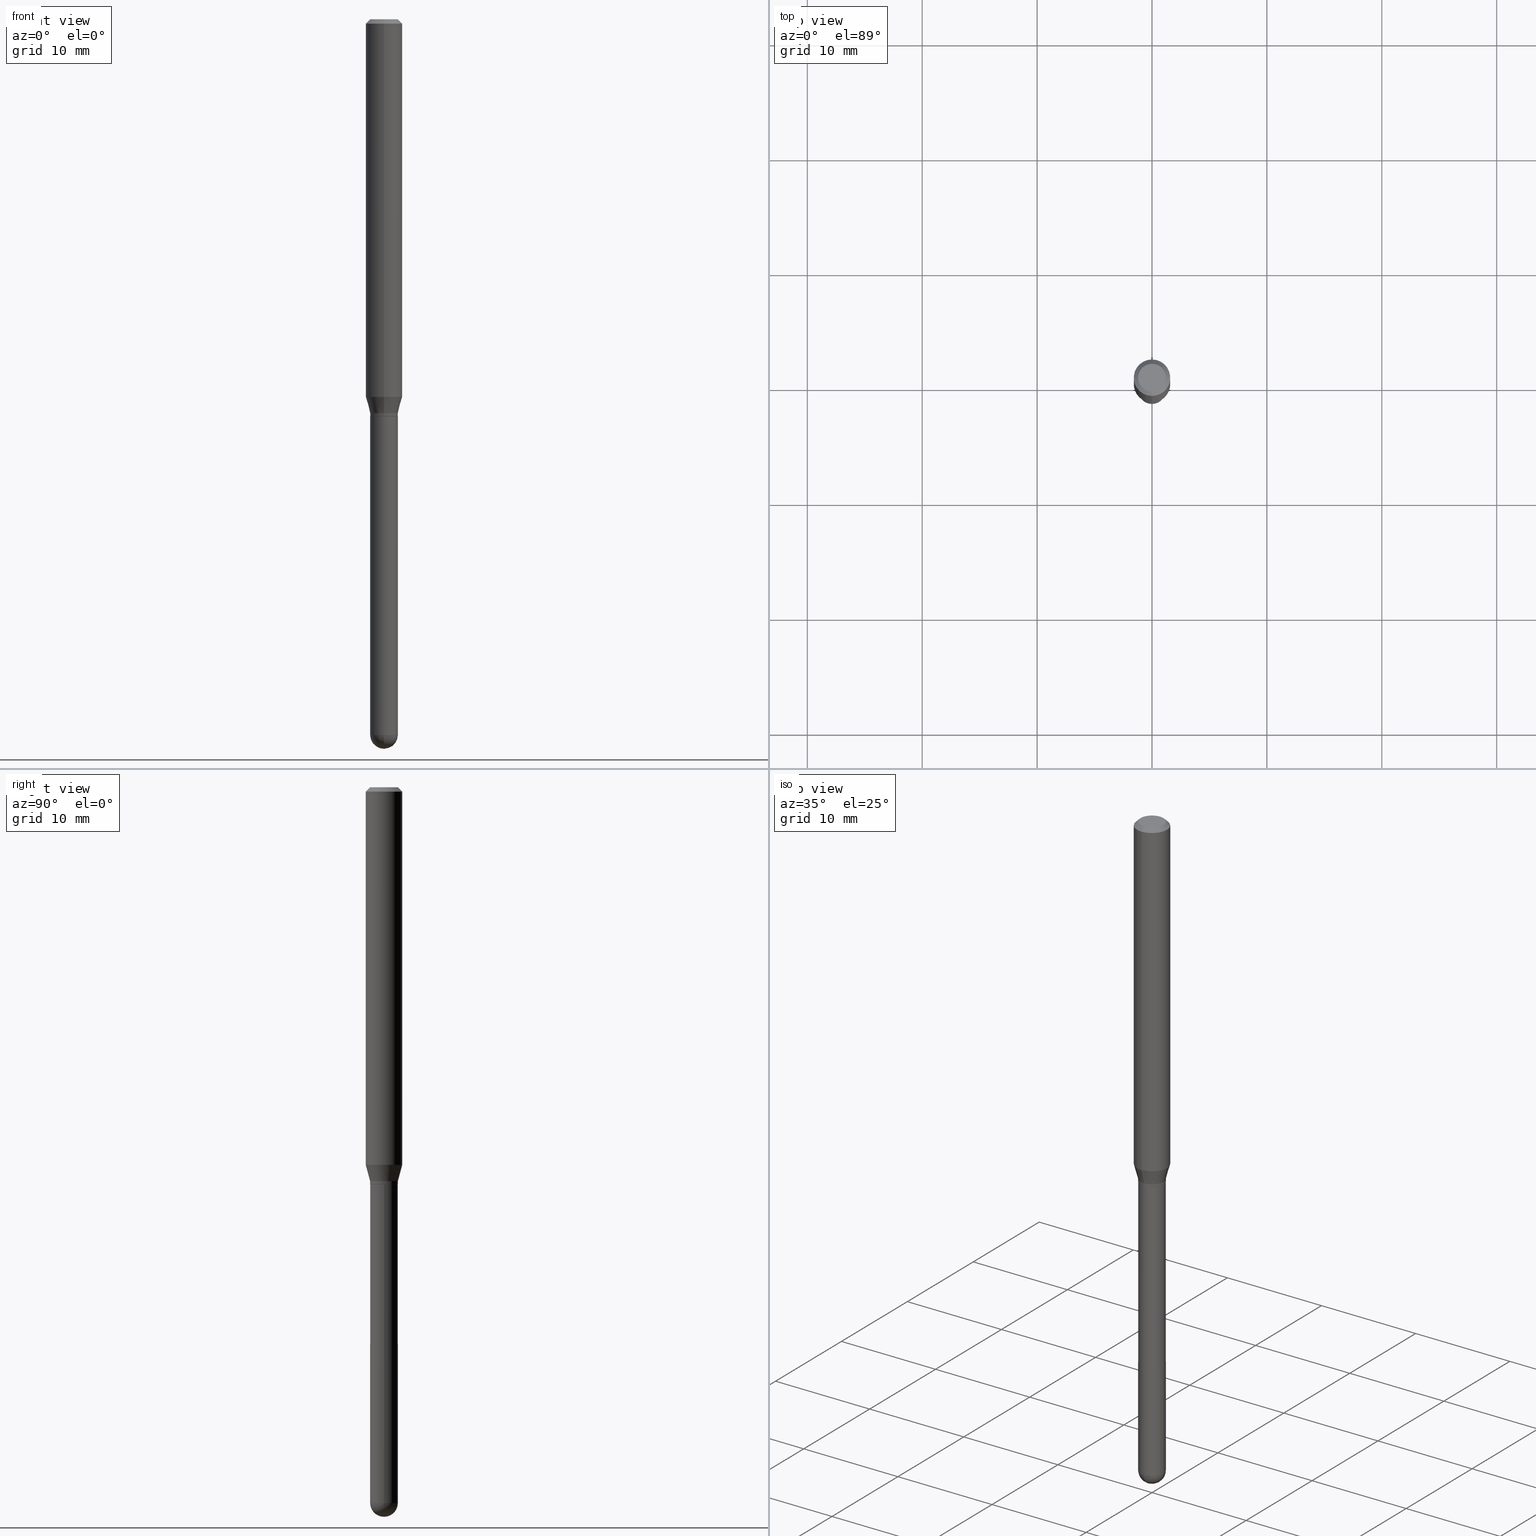
[diagram: canonical four-view strip — front | top / right | iso, engineering-drawing reading convention]
A machine part, canonical four-view strip (front | top / right | iso — engineering-drawing reading convention). The complete STEP part file that produces these views, byte-faithful:
ISO-10303-21;
HEADER;
FILE_DESCRIPTION (( 'STEP AP203' ),
    '1' );
FILE_NAME ('01577.STEP',
    '2024-03-07T19:41:30',
    ( '' ),
    ( '' ),
    'SwSTEP 2.0',
    'SolidWorks 2023',
    '' );
FILE_SCHEMA (( 'CONFIG_CONTROL_DESIGN' ));
ENDSEC;

DATA;
#1 = AXIS2_PLACEMENT_3D ( 'NONE', #165, #325, #30 ) ;
#2 = EDGE_CURVE ( 'NONE', #18, #146, #27, .T. ) ;
#3 = VERTEX_POINT ( 'NONE', #150 ) ;
#4 = FACE_OUTER_BOUND ( 'NONE', #511, .T. ) ;
#5 = DIRECTION ( 'NONE',  ( 1.000000000000000000, -6.982962677686280910E-15, 0.000000000000000000 ) ) ;
#6 = DIRECTION ( 'NONE',  ( -2.445498603033242318E-29, 3.491438668060727098E-15, 1.000000000000000000 ) ) ;
#7 = ORIENTED_EDGE ( 'NONE', *, *, #103, .T. ) ;
#8 = COORDINATED_UNIVERSAL_TIME_OFFSET ( 5, 0, .BEHIND. ) ;
#9 = EDGE_CURVE ( 'NONE', #300, #450, #330, .T. ) ;
#10 = CIRCLE ( 'NONE', #298, 0.04750000000000020178 ) ;
#11 = MANIFOLD_SOLID_BREP ( 'Body-Move/Copy2[1]', #136 ) ;
#12 = CALENDAR_DATE ( 2024, 7, 3 ) ;
#13 = CARTESIAN_POINT ( 'NONE',  ( 4.364351673553919652E-16, 0.06249999999999995143, -0.01500000000000022669 ) ) ;
#14 = ORIENTED_EDGE ( 'NONE', *, *, #158, .T. ) ;
#15 = ORIENTED_EDGE ( 'NONE', *, *, #317, .F. ) ;
#16 = CIRCLE ( 'NONE', #376, 0.04749999999999964667 ) ;
#17 = MANIFOLD_SOLID_BREP ( 'Body-Move/Copy2[2]', #269 ) ;
#18 = VERTEX_POINT ( 'NONE', #79 ) ;
#19 = CARTESIAN_POINT ( 'NONE',  ( 3.325878100125211547E-29, -4.748356588562590841E-15, -1.360000000000000542 ) ) ;
#20 = EDGE_LOOP ( 'NONE', ( #183, #377, #339, #374, #167 ) ) ;
#21 = ORIENTED_EDGE ( 'NONE', *, *, #32, .T. ) ;
#22 = DIRECTION ( 'NONE',  ( 6.982962677686265922E-15, 1.000000000000000000, -3.483106191921935554E-15 ) ) ;
#23 = EDGE_CURVE ( 'NONE', #139, #3, #210, .T. ) ;
#24 = VECTOR ( 'NONE', #38, 39.37007874015748143 ) ;
#25 = CC_DESIGN_APPROVAL ( #89, ( #111 ) ) ;
#26 = CARTESIAN_POINT ( 'NONE',  ( -3.281992458512212238E-16, -0.04700000000000473938, -1.360000000000000320 ) ) ;
#27 = LINE ( 'NONE', #272, #331 ) ;
#28 = APPLICATION_CONTEXT ( 'configuration controlled 3d designs of mechanical parts and assemblies' ) ;
#29 = CARTESIAN_POINT ( 'NONE',  ( 3.164522238549493662E-29, -4.517988804371280319E-15, -1.294019237886466112 ) ) ;
#30 = DIRECTION ( 'NONE',  ( -6.982962677686265922E-15, -1.000000000000000000, 3.483106191921935554E-15 ) ) ;
#31 = LINE ( 'NONE', #493, #51 ) ;
#32 = EDGE_CURVE ( 'NONE', #284, #321, #488, .T. ) ;
#33 = AXIS2_PLACEMENT_3D ( 'NONE', #206, #510, #160 ) ;
#34 = CARTESIAN_POINT ( 'NONE',  ( 5.993450207295445537E-29, -8.568675055808764986E-15, -2.452500000000000124 ) ) ;
#35 = AXIS2_PLACEMENT_3D ( 'NONE', #170, #327, #50 ) ;
#36 = DIRECTION ( 'NONE',  ( -6.982962677686265922E-15, -1.000000000000000000, 3.491438668060727098E-15 ) ) ;
#37 = PLANE ( 'NONE',  #467 ) ;
#38 = DIRECTION ( 'NONE',  ( -2.445498603033242318E-29, 3.491438668060727098E-15, 1.000000000000000000 ) ) ;
#39 = ORIENTED_EDGE ( 'NONE', *, *, #213, .F. ) ;
#40 = EDGE_CURVE ( 'NONE', #450, #351, #45, .T. ) ;
#41 = ORIENTED_EDGE ( 'NONE', *, *, #103, .F. ) ;
#42 = APPROVAL ( #367, 'UNSPECIFIED' ) ;
#43 = CARTESIAN_POINT ( 'NONE',  ( 2.167285587284378827E-46, -3.094233909923244903E-32, -8.862346453995985347E-18 ) ) ;
#44 = CARTESIAN_POINT ( 'NONE',  ( 3.324655350823693400E-29, -4.746610869228559386E-15, -1.359500000000000375 ) ) ;
#45 = CIRCLE ( 'NONE', #456, 0.04750000000000000749 ) ;
#46 = ORIENTED_EDGE ( 'NONE', *, *, #266, .T. ) ;
#47 = AXIS2_PLACEMENT_3D ( 'NONE', #143, #229, #22 ) ;
#48 = CYLINDRICAL_SURFACE ( 'NONE', #315, 0.06250000000000000000 ) ;
#49 = ADVANCED_FACE ( 'NONE', ( #398 ), #171, .T. ) ;
#50 = DIRECTION ( 'NONE',  ( 1.000000000000000000, 0.000000000000000000, 0.000000000000000000 ) ) ;
#51 = VECTOR ( 'NONE', #200, 39.37007874015748143 ) ;
#52 = EDGE_LOOP ( 'NONE', ( #491, #75 ) ) ;
#53 = PERSON_AND_ORGANIZATION ( #296, #102 ) ;
#54 = PRODUCT_DEFINITION_SHAPE ( 'NONE', 'NONE',  #340 ) ;
#55 = ORIENTED_EDGE ( 'NONE', *, *, #188, .F. ) ;
#56 = APPROVAL_ROLE ( '' ) ;
#57 = CARTESIAN_POINT ( 'NONE',  ( 5.993450207295445537E-29, -8.568675055808764986E-15, -2.452500000000000124 ) ) ;
#58 =( GEOMETRIC_REPRESENTATION_CONTEXT ( 3 ) GLOBAL_UNCERTAINTY_ASSIGNED_CONTEXT ( ( #382 ) ) GLOBAL_UNIT_ASSIGNED_CONTEXT ( ( #318, #471, #429 ) ) REPRESENTATION_CONTEXT ( 'NONE', 'WORKASPACE' ) );
#59 = FACE_OUTER_BOUND ( 'NONE', #208, .T. ) ;
#60 = ORIENTED_EDGE ( 'NONE', *, *, #135, .F. ) ;
#61 = EDGE_CURVE ( 'NONE', #162, #193, #401, .T. ) ;
#62 = DIRECTION ( 'NONE',  ( 1.000000000000000000, -6.982962677686280910E-15, 0.000000000000000000 ) ) ;
#63 = CARTESIAN_POINT ( 'NONE',  ( 3.316907271901575630E-16, 0.04749999999999143102, -2.452500000000000568 ) ) ;
#64 = CARTESIAN_POINT ( 'NONE',  ( 6.111640995526040935E-29, -8.731611883255839934E-15, -2.500000000000000000 ) ) ;
#65 = CARTESIAN_POINT ( 'NONE',  ( 5.997512247169047773E-29, -8.562857983512815004E-15, -2.452500000000000124 ) ) ;
#66 = CIRCLE ( 'NONE', #342, 0.04750000000000000749 ) ;
#67 = DIRECTION ( 'NONE',  ( -2.445498603033242318E-29, 3.491438668060727098E-15, 1.000000000000000000 ) ) ;
#68 = CARTESIAN_POINT ( 'NONE',  ( 3.907985046680881378E-16, 0.04749999999999549027, -1.350000000000000311 ) ) ;
#69 = CARTESIAN_POINT ( 'NONE',  ( 0.000000000000000000, 0.000000000000000000, 0.000000000000000000 ) ) ;
#70 = EDGE_CURVE ( 'NONE', #450, #139, #380, .T. ) ;
#71 = CARTESIAN_POINT ( 'NONE',  ( 0.000000000000000000, 0.000000000000000000, 0.000000000000000000 ) ) ;
#72 = CIRCLE ( 'NONE', #383, 0.06250000000000000000 ) ;
#73 = CARTESIAN_POINT ( 'NONE',  ( 3.375077994860819570E-16, 0.04749999999999549027, -1.350000000000000311 ) ) ;
#74 = DIRECTION ( 'NONE',  ( 2.445498603033241757E-29, -3.491438668060727098E-15, -1.000000000000000000 ) ) ;
#75 = ORIENTED_EDGE ( 'NONE', *, *, #454, .T. ) ;
#76 = EDGE_CURVE ( 'NONE', #484, #264, #485, .T. ) ;
#77 = CARTESIAN_POINT ( 'NONE',  ( 0.000000000000000000, 0.000000000000000000, 0.000000000000000000 ) ) ;
#78 = DIRECTION ( 'NONE',  ( -2.445468806185136597E-29, 3.491481338843145583E-15, 1.000000000000000000 ) ) ;
#79 = CARTESIAN_POINT ( 'NONE',  ( -3.316907271900660552E-16, -0.04750000000000491329, -1.349999999999999867 ) ) ;
#80 = DIRECTION ( 'NONE',  ( -2.445498603033242318E-29, 3.491438668060727098E-15, 1.000000000000000000 ) ) ;
#81 = CARTESIAN_POINT ( 'NONE',  ( -3.316907271900970672E-16, -0.04749999999999991729, 1.658433367328842571E-16 ) ) ;
#82 = DIRECTION ( 'NONE',  ( 6.982962677686265133E-15, 1.000000000000000000, 0.000000000000000000 ) ) ;
#83 = CARTESIAN_POINT ( 'NONE',  ( 3.325837576411786624E-29, -4.748414620826679034E-15, -1.360000000000000320 ) ) ;
#84 = CARTESIAN_POINT ( 'NONE',  ( 0.04749999999999999362, -5.080105348016776545E-15, -1.360000000000000320 ) ) ;
#85 = DIRECTION ( 'NONE',  ( 1.000000000000000000, -6.982962677686266711E-15, 4.876176775795934672E-29 ) ) ;
#86 = AXIS2_PLACEMENT_3D ( 'NONE', #71, #433, #239 ) ;
#87 = DATE_AND_TIME ( #335, #476 ) ;
#88 = EDGE_LOOP ( 'NONE', ( #15, #101, #348, #368 ) ) ;
#89 = APPROVAL ( #265, 'UNSPECIFIED' ) ;
#90 = DATE_AND_TIME ( #215, #122 ) ;
#91 = CIRCLE ( 'NONE', #385, 0.04749999999999999362 ) ;
#92 = ORIENTED_EDGE ( 'NONE', *, *, #393, .F. ) ;
#93 = CALENDAR_DATE ( 2024, 7, 3 ) ;
#94 = EDGE_CURVE ( 'NONE', #284, #193, #254, .T. ) ;
#95 = DIRECTION ( 'NONE',  ( -2.445468806185136877E-29, 3.491481338843145188E-15, 1.000000000000000000 ) ) ;
#96 = EDGE_LOOP ( 'NONE', ( #307, #441 ) ) ;
#97 = SPHERICAL_SURFACE ( 'NONE', #144, 0.04749999999999998668 ) ;
#98 = VERTEX_POINT ( 'NONE', #372 ) ;
#99 = DIRECTION ( 'NONE',  ( -2.445498603033242318E-29, 3.491438668060727098E-15, 1.000000000000000000 ) ) ;
#100 = VECTOR ( 'NONE', #95, 39.37007874015748143 ) ;
#101 = ORIENTED_EDGE ( 'NONE', *, *, #249, .T. ) ;
#102 = ORGANIZATION ( 'UNSPECIFIED', 'UNSPECIFIED', '' ) ;
#103 = EDGE_CURVE ( 'NONE', #264, #98, #72, .T. ) ;
#104 = DIRECTION ( 'NONE',  ( -2.445498603033242318E-29, 3.491438668060727098E-15, 1.000000000000000000 ) ) ;
#105 = VERTEX_POINT ( 'NONE', #336 ) ;
#106 = CARTESIAN_POINT ( 'NONE',  ( 5.993450207295445537E-29, -8.568675055808764986E-15, -2.452500000000000124 ) ) ;
#107 = DIRECTION ( 'NONE',  ( -2.445498603033242318E-29, 3.491438668060727098E-15, 1.000000000000000000 ) ) ;
#108 = ORIENTED_EDGE ( 'NONE', *, *, #135, .T. ) ;
#109 = DIRECTION ( 'NONE',  ( -6.982962677686265922E-15, -1.000000000000000000, 4.370956789862821150E-15 ) ) ;
#110 = VECTOR ( 'NONE', #99, 39.37007874015748143 ) ;
#111 = PRODUCT_DEFINITION_FORMATION_WITH_SPECIFIED_SOURCE ( 'ANY', '', #299, .NOT_KNOWN. ) ;
#112 = CARTESIAN_POINT ( 'NONE',  ( 3.668247904549865806E-31, -5.237158002091093384E-17, -0.01500000000000000812 ) ) ;
#113 = LINE ( 'NONE', #512, #270 ) ;
#114 = FACE_OUTER_BOUND ( 'NONE', #96, .T. ) ;
#115 = ORIENTED_EDGE ( 'NONE', *, *, #2, .T. ) ;
#116 = DIRECTION ( 'NONE',  ( -2.445468806185136597E-29, 3.491481338843145583E-15, 1.000000000000000000 ) ) ;
#117 = ADVANCED_FACE ( 'NONE', ( #483 ), #222, .T. ) ;
#118 = CC_DESIGN_PERSON_AND_ORGANIZATION_ASSIGNMENT ( #440, #217, ( #458 ) ) ;
#119 = AXIS2_PLACEMENT_3D ( 'NONE', #402, #286, #168 ) ;
#120 = CONICAL_SURFACE ( 'NONE', #177, 0.04699999999999999317, 0.7853981633969275844 ) ;
#121 = DIRECTION ( 'NONE',  ( -6.982962677686265922E-15, -1.000000000000000000, 3.491438668060727098E-15 ) ) ;
#122 = LOCAL_TIME ( 14, 41, 30.00000000000000000, #482 ) ;
#123 = EDGE_LOOP ( 'NONE', ( #430, #141, #60, #408 ) ) ;
#124 = ORIENTED_EDGE ( 'NONE', *, *, #32, .F. ) ;
#125 = DIRECTION ( 'NONE',  ( -2.445498603033242318E-29, 3.491438668060727098E-15, 1.000000000000000000 ) ) ;
#126 = DIRECTION ( 'NONE',  ( -6.982962677686266711E-15, -1.000000000000000000, 3.491438668060727493E-15 ) ) ;
#127 = DATE_TIME_ROLE ( 'creation_date' ) ;
#128 = AXIS2_PLACEMENT_3D ( 'NONE', #169, #396, #442 ) ;
#129 = AXIS2_PLACEMENT_3D ( 'NONE', #453, #67, #503 ) ;
#130 = ADVANCED_FACE ( 'NONE', ( #4 ), #97, .T. ) ;
#131 = CC_DESIGN_SECURITY_CLASSIFICATION ( #458, ( #111 ) ) ;
#132 = SHAPE_DEFINITION_REPRESENTATION ( #54, #334 ) ;
#133 = ORIENTED_EDGE ( 'NONE', *, *, #355, .T. ) ;
#134 = APPROVAL_DATE_TIME ( #225, #89 ) ;
#135 = EDGE_CURVE ( 'NONE', #146, #105, #314, .T. ) ;
#136 = CLOSED_SHELL ( 'NONE', ( #117, #179, #308, #130, #412 ) ) ;
#137 = CIRCLE ( 'NONE', #1, 0.06250000000000000000 ) ;
#138 = DIRECTION ( 'NONE',  ( 4.937700262164548042E-15, 0.7071067811865451302, -0.7071067811865499042 ) ) ;
#139 = VERTEX_POINT ( 'NONE', #84 ) ;
#140 = CARTESIAN_POINT ( 'NONE',  ( 3.668247904549865806E-31, -5.237158002091093384E-17, -0.01500000000000000812 ) ) ;
#141 = ORIENTED_EDGE ( 'NONE', *, *, #228, .T. ) ;
#142 = ORIENTED_EDGE ( 'NONE', *, *, #61, .T. ) ;
#143 = CARTESIAN_POINT ( 'NONE',  ( 3.668247904549865806E-31, -5.237158002091093384E-17, -0.01500000000000000812 ) ) ;
#144 = AXIS2_PLACEMENT_3D ( 'NONE', #57, #452, #267 ) ;
#145 = ORIENTED_EDGE ( 'NONE', *, *, #9, .F. ) ;
#146 = VERTEX_POINT ( 'NONE', #328 ) ;
#147 = CIRCLE ( 'NONE', #489, 0.04750000000000000749 ) ;
#148 = DIRECTION ( 'NONE',  ( -1.000000000000000000, 6.982962677686265922E-15, -4.883557194083112340E-29 ) ) ;
#149 = DIRECTION ( 'NONE',  ( -2.445468806185136877E-29, 3.491481338843145188E-15, 1.000000000000000000 ) ) ;
#150 = CARTESIAN_POINT ( 'NONE',  ( -0.04749999999999999362, -6.318128502683699525E-15, -1.360000000000000320 ) ) ;
#151 = FACE_OUTER_BOUND ( 'NONE', #256, .T. ) ;
#152 = EDGE_CURVE ( 'NONE', #186, #484, #285, .T. ) ;
#153 = CARTESIAN_POINT ( 'NONE',  ( 3.316907271901308404E-16, 0.04749999999999524741, -1.360000000000000542 ) ) ;
#154 = AXIS2_PLACEMENT_3D ( 'NONE', #69, #116, #400 ) ;
#155 = AXIS2_PLACEMENT_3D ( 'NONE', #34, #161, #389 ) ;
#156 = CARTESIAN_POINT ( 'NONE',  ( 3.375077994860469513E-16, 0.04749999999999991729, -1.658433367328842571E-16 ) ) ;
#157 = LINE ( 'NONE', #81, #24 ) ;
#158 = EDGE_CURVE ( 'NONE', #364, #18, #192, .T. ) ;
#159 = CC_DESIGN_PERSON_AND_ORGANIZATION_ASSIGNMENT ( #371, #407, ( #111 ) ) ;
#160 = DIRECTION ( 'NONE',  ( -6.982962677686265133E-15, -1.000000000000000000, 5.751258934030070759E-15 ) ) ;
#161 = DIRECTION ( 'NONE',  ( -1.000000000000000000, 7.105427357601001070E-15, -4.926315508542082329E-29 ) ) ;
#162 = VERTEX_POINT ( 'NONE', #283 ) ;
#163 = DIRECTION ( 'NONE',  ( -2.445498603033242318E-29, 3.491438668060727098E-15, 1.000000000000000000 ) ) ;
#164 = CIRCLE ( 'NONE', #259, 0.04749999999999998668 ) ;
#165 = CARTESIAN_POINT ( 'NONE',  ( 3.668247904549865806E-31, -5.237158002091093384E-17, -0.01500000000000000812 ) ) ;
#166 = DIRECTION ( 'NONE',  ( -2.445498603033242318E-29, 3.491438668060727098E-15, 1.000000000000000000 ) ) ;
#167 = ORIENTED_EDGE ( 'NONE', *, *, #40, .T. ) ;
#168 = DIRECTION ( 'NONE',  ( -6.982962677686266711E-15, -1.000000000000000000, 5.812442539711199378E-15 ) ) ;
#169 = CARTESIAN_POINT ( 'NONE',  ( 3.301423114094877185E-29, -4.713442201881981444E-15, -1.350000000000000089 ) ) ;
#170 = CARTESIAN_POINT ( 'NONE',  ( 0.000000000000000000, 0.000000000000000000, 0.000000000000000000 ) ) ;
#171 = CYLINDRICAL_SURFACE ( 'NONE', #277, 0.06250000000000000000 ) ;
#172 = ADVANCED_FACE ( 'NONE', ( #428 ), #209, .T. ) ;
#173 = DIRECTION ( 'NONE',  ( -6.982962677686265922E-15, -1.000000000000000000, 4.370956789862821150E-15 ) ) ;
#174 = SECURITY_CLASSIFICATION_LEVEL ( 'unclassified' ) ;
#175 = AXIS2_PLACEMENT_3D ( 'NONE', #83, #473, #470 ) ;
#176 = COORDINATED_UNIVERSAL_TIME_OFFSET ( 5, 0, .BEHIND. ) ;
#177 = AXIS2_PLACEMENT_3D ( 'NONE', #465, #104, #459 ) ;
#178 = DATE_AND_TIME ( #12, #324 ) ;
#179 = ADVANCED_FACE ( 'NONE', ( #205 ), #288, .T. ) ;
#180 = PERSON_AND_ORGANIZATION_ROLE ( 'design_owner' ) ;
#181 = ORIENTED_EDGE ( 'NONE', *, *, #266, .F. ) ;
#182 = VECTOR ( 'NONE', #149, 39.37007874015748143 ) ;
#183 = ORIENTED_EDGE ( 'NONE', *, *, #198, .T. ) ;
#184 = APPROVAL_PERSON_ORGANIZATION ( #480, #42, #370 ) ;
#185 = CARTESIAN_POINT ( 'NONE',  ( -3.281992458512212238E-16, -0.04700000000000473938, -1.360000000000000320 ) ) ;
#186 = VERTEX_POINT ( 'NONE', #309 ) ;
#187 = ORIENTED_EDGE ( 'NONE', *, *, #346, .F. ) ;
#188 = EDGE_CURVE ( 'NONE', #357, #351, #164, .T. ) ;
#189 = CARTESIAN_POINT ( 'NONE',  ( 3.301423114094877185E-29, -4.713442201881981444E-15, -1.350000000000000089 ) ) ;
#190 = DIRECTION ( 'NONE',  ( -6.982962677686266711E-15, -1.000000000000000000, 5.812442539711199378E-15 ) ) ;
#191 = DESIGN_CONTEXT ( 'detailed design', #28, 'design' ) ;
#192 = CIRCLE ( 'NONE', #128, 0.04750000000000020178 ) ;
#193 = VERTEX_POINT ( 'NONE', #248 ) ;
#194 = ORIENTED_EDGE ( 'NONE', *, *, #70, .T. ) ;
#195 = AXIS2_PLACEMENT_3D ( 'NONE', #153, #381, #386 ) ;
#196 = LINE ( 'NONE', #276, #448 ) ;
#197 = DIRECTION ( 'NONE',  ( -2.445468806185136597E-29, 3.491481338843145583E-15, 1.000000000000000000 ) ) ;
#198 = EDGE_CURVE ( 'NONE', #351, #487, #66, .T. ) ;
#199 = DIRECTION ( 'NONE',  ( 2.445498603033242318E-29, -3.491438668060727098E-15, -1.000000000000000000 ) ) ;
#200 = DIRECTION ( 'NONE',  ( 5.024295867785445738E-15, 0.7071067811861817543, 0.7071067811869132802 ) ) ;
#201 = ORIENTED_EDGE ( 'NONE', *, *, #355, .F. ) ;
#202 = CIRCLE ( 'NONE', #240, 0.06250000000000000000 ) ;
#203 = CARTESIAN_POINT ( 'NONE',  ( 2.167285587284378827E-46, -3.094233909923244903E-32, -8.862346453995985347E-18 ) ) ;
#204 = ORIENTED_EDGE ( 'NONE', *, *, #188, .T. ) ;
#205 = FACE_OUTER_BOUND ( 'NONE', #261, .T. ) ;
#206 = CARTESIAN_POINT ( 'NONE',  ( 3.324655350823693400E-29, -4.746610869228559386E-15, -1.359500000000000375 ) ) ;
#207 = DIRECTION ( 'NONE',  ( -6.982962677686266711E-15, -1.000000000000000000, 3.491438668060727493E-15 ) ) ;
#208 = EDGE_LOOP ( 'NONE', ( #181, #395, #220, #7 ) ) ;
#209 = CYLINDRICAL_SURFACE ( 'NONE', #496, 0.04749999999999991729 ) ;
#210 = CIRCLE ( 'NONE', #175, 0.04749999999999999362 ) ;
#211 = CONICAL_SURFACE ( 'NONE', #129, 0.04750000000000020178, 0.2617993877991424689 ) ;
#212 = DIRECTION ( 'NONE',  ( -2.445498603033242318E-29, 3.491438668060727098E-15, 1.000000000000000000 ) ) ;
#213 = EDGE_CURVE ( 'NONE', #146, #98, #230, .T. ) ;
#214 = CYLINDRICAL_SURFACE ( 'NONE', #250, 0.04750000000000000749 ) ;
#215 = CALENDAR_DATE ( 2024, 7, 3 ) ;
#216 = AXIS2_PLACEMENT_3D ( 'NONE', #495, #148, #344 ) ;
#217 = PERSON_AND_ORGANIZATION_ROLE ( 'classification_officer' ) ;
#218 = EDGE_CURVE ( 'NONE', #98, #264, #137, .T. ) ;
#219 = ORIENTED_EDGE ( 'NONE', *, *, #253, .T. ) ;
#220 = ORIENTED_EDGE ( 'NONE', *, *, #76, .T. ) ;
#221 = COORDINATED_UNIVERSAL_TIME_OFFSET ( 5, 0, .BEHIND. ) ;
#222 = CYLINDRICAL_SURFACE ( 'NONE', #154, 0.04750000000000000749 ) ;
#223 = ORIENTED_EDGE ( 'NONE', *, *, #274, .F. ) ;
#224 = ORIENTED_EDGE ( 'NONE', *, *, #218, .T. ) ;
#225 = DATE_AND_TIME ( #93, #369 ) ;
#226 = AXIS2_PLACEMENT_3D ( 'NONE', #203, #125, #207 ) ;
#227 = ORIENTED_EDGE ( 'NONE', *, *, #198, .F. ) ;
#228 = EDGE_CURVE ( 'NONE', #364, #105, #358, .T. ) ;
#229 = DIRECTION ( 'NONE',  ( 2.445498603033242318E-29, -3.491438668060727098E-15, -1.000000000000000000 ) ) ;
#230 = LINE ( 'NONE', #498, #236 ) ;
#231 = DIRECTION ( 'NONE',  ( -6.982962677686265922E-15, -1.000000000000000000, 3.491438668060727098E-15 ) ) ;
#232 = DIRECTION ( 'NONE',  ( -1.807323732225277680E-15, -0.2588190451025106920, 0.9659258262890710878 ) ) ;
#233 = EDGE_LOOP ( 'NONE', ( #379, #46, #224, #260 ) ) ;
#234 = CARTESIAN_POINT ( 'NONE',  ( 3.301423114094877185E-29, -4.713442201881981444E-15, -1.350000000000000089 ) ) ;
#235 = ADVANCED_FACE ( 'NONE', ( #322 ), #120, .T. ) ;
#236 = VECTOR ( 'NONE', #80, 39.37007874015748143 ) ;
#237 = PLANE ( 'NONE',  #195 ) ;
#238 = DIRECTION ( 'NONE',  ( 6.982962677686265922E-15, 1.000000000000000000, -3.483106191921935554E-15 ) ) ;
#239 = DIRECTION ( 'NONE',  ( -6.982962677686265922E-15, -1.000000000000000000, 3.491438668060727098E-15 ) ) ;
#240 = AXIS2_PLACEMENT_3D ( 'NONE', #29, #310, #109 ) ;
#241 = LOCAL_TIME ( 14, 41, 30.00000000000000000, #176 ) ;
#242 = CARTESIAN_POINT ( 'NONE',  ( -0.04750000000000000749, -6.318128502683699525E-15, -2.452500000000000124 ) ) ;
#243 = EDGE_LOOP ( 'NONE', ( #201, #142, #303, #508 ) ) ;
#244 =( LENGTH_UNIT ( ) NAMED_UNIT ( * ) SI_UNIT ( $, .METRE. ) );
#245 = DIRECTION ( 'NONE',  ( -2.445468806185136597E-29, 3.491481338843145583E-15, 1.000000000000000000 ) ) ;
#246 = DIRECTION ( 'NONE',  ( -2.445498603033242318E-29, 3.491438668060727098E-15, 1.000000000000000000 ) ) ;
#247 = CYLINDRICAL_SURFACE ( 'NONE', #86, 0.04749999999999991729 ) ;
#248 = CARTESIAN_POINT ( 'NONE',  ( -3.316907271900611741E-16, -0.04750000000000428185, -1.359500000000000153 ) ) ;
#249 = EDGE_CURVE ( 'NONE', #321, #284, #457, .T. ) ;
#250 = AXIS2_PLACEMENT_3D ( 'NONE', #77, #320, #85 ) ;
#251 = FACE_OUTER_BOUND ( 'NONE', #347, .T. ) ;
#252 = DATE_TIME_ROLE ( 'classification_date' ) ;
#253 = EDGE_CURVE ( 'NONE', #105, #146, #202, .T. ) ;
#254 = LINE ( 'NONE', #185, #304 ) ;
#255 = EDGE_LOOP ( 'NONE', ( #302, #219, #326, #41 ) ) ;
#256 = EDGE_LOOP ( 'NONE', ( #472, #14, #115, #460 ) ) ;
#257 = ORIENTED_EDGE ( 'NONE', *, *, #501, .F. ) ;
#258 = DATE_AND_TIME ( #295, #241 ) ;
#259 = AXIS2_PLACEMENT_3D ( 'NONE', #106, #273, #82 ) ;
#260 = ORIENTED_EDGE ( 'NONE', *, *, #76, .F. ) ;
#261 = EDGE_LOOP ( 'NONE', ( #55, #461, #187, #227 ) ) ;
#262 = PERSON_AND_ORGANIZATION ( #296, #102 ) ;
#263 = DIRECTION ( 'NONE',  ( -4.937700262161976356E-15, -0.7071067811861768693, 0.7071067811869181652 ) ) ;
#264 = VERTEX_POINT ( 'NONE', #462 ) ;
#265 = APPROVAL_STATUS ( 'not_yet_approved' ) ;
#266 = EDGE_CURVE ( 'NONE', #186, #98, #196, .T. ) ;
#267 = DIRECTION ( 'NONE',  ( 6.982962677686265922E-15, 1.000000000000000000, -5.751258934030028949E-15 ) ) ;
#268 = FACE_OUTER_BOUND ( 'NONE', #337, .T. ) ;
#269 = CLOSED_SHELL ( 'NONE', ( #172, #235, #282, #436, #294, #290, #49, #366, #427, #360, #373, #463 ) ) ;
#270 = VECTOR ( 'NONE', #212, 39.37007874015748143 ) ;
#271 = DIRECTION ( 'NONE',  ( -2.445498603033242318E-29, 3.491438668060727098E-15, 1.000000000000000000 ) ) ;
#272 = CARTESIAN_POINT ( 'NONE',  ( -3.316907271900660552E-16, -0.04750000000000491329, -1.349999999999999867 ) ) ;
#273 = DIRECTION ( 'NONE',  ( 1.000000000000000000, -6.982962677686265922E-15, 4.883557194083112340E-29 ) ) ;
#274 = EDGE_CURVE ( 'NONE', #18, #364, #10, .T. ) ;
#275 = FACE_OUTER_BOUND ( 'NONE', #233, .T. ) ;
#276 = CARTESIAN_POINT ( 'NONE',  ( -4.287811248607203282E-16, -0.06250000000000005551, -0.01499999999999979128 ) ) ;
#277 = AXIS2_PLACEMENT_3D ( 'NONE', #391, #437, #36 ) ;
#278 = CONICAL_SURFACE ( 'NONE', #47, 0.06250000000000000000, 0.7853981633974483900 ) ;
#279 = FACE_OUTER_BOUND ( 'NONE', #52, .T. ) ;
#280 = FACE_OUTER_BOUND ( 'NONE', #243, .T. ) ;
#281 = DIRECTION ( 'NONE',  ( -6.982962677686265922E-15, -1.000000000000000000, 3.491438668060727098E-15 ) ) ;
#282 = ADVANCED_FACE ( 'NONE', ( #275 ), #423, .T. ) ;
#283 = CARTESIAN_POINT ( 'NONE',  ( 3.375077994860790481E-16, 0.04749999999999501149, -1.359500000000000597 ) ) ;
#284 = VERTEX_POINT ( 'NONE', #26 ) ;
#285 = CIRCLE ( 'NONE', #447, 0.04749999999999999362 ) ;
#286 = DIRECTION ( 'NONE',  ( -2.445498603033242318E-29, 3.491438668060727098E-15, 1.000000000000000000 ) ) ;
#287 = CARTESIAN_POINT ( 'NONE',  ( 0.04750000000000000749, -6.987327029359844530E-15, -2.452500000000000124 ) ) ;
#288 = SPHERICAL_SURFACE ( 'NONE', #216, 0.04749999999999998668 ) ;
#289 = CARTESIAN_POINT ( 'NONE',  ( 0.000000000000000000, 0.000000000000000000, 0.000000000000000000 ) ) ;
#290 = ADVANCED_FACE ( 'NONE', ( #151 ), #306, .T. ) ;
#291 = ORIENTED_EDGE ( 'NONE', *, *, #317, .T. ) ;
#292 = DIRECTION ( 'NONE',  ( -2.445498603033242318E-29, 3.491438668060727098E-15, 1.000000000000000000 ) ) ;
#293 = MECHANICAL_CONTEXT ( 'NONE', #504, 'mechanical' ) ;
#294 = ADVANCED_FACE ( 'NONE', ( #345 ), #211, .T. ) ;
#295 = CALENDAR_DATE ( 2024, 7, 3 ) ;
#296 = PERSON ( 'UNSPECIFIED', 'UNSPECIFIED', 'UNSPECIFIED', ('UNSPECIFIED'), ('UNSPECIFIED'), ('UNSPECIFIED') ) ;
#297 = PERSON_AND_ORGANIZATION_ROLE ( 'creator' ) ;
#298 = AXIS2_PLACEMENT_3D ( 'NONE', #189, #271, #378 ) ;
#299 = PRODUCT ( '01577', '01577', '', ( #293 ) ) ;
#300 = VERTEX_POINT ( 'NONE', #419 ) ;
#301 = APPROVAL ( #451, 'UNSPECIFIED' ) ;
#302 = ORIENTED_EDGE ( 'NONE', *, *, #444, .F. ) ;
#303 = ORIENTED_EDGE ( 'NONE', *, *, #393, .T. ) ;
#304 = VECTOR ( 'NONE', #263, 39.37007874015748143 ) ;
#305 = DIRECTION ( 'NONE',  ( -2.445498603033242318E-29, 3.491438668060727098E-15, 1.000000000000000000 ) ) ;
#306 = CONICAL_SURFACE ( 'NONE', #431, 0.04750000000000020178, 0.2617993877991424689 ) ;
#307 = ORIENTED_EDGE ( 'NONE', *, *, #507, .T. ) ;
#308 = ADVANCED_FACE ( 'NONE', ( #279 ), #237, .F. ) ;
#309 = CARTESIAN_POINT ( 'NONE',  ( -3.773273898774340269E-16, -0.04749999999999999362, 1.569809902788885676E-16 ) ) ;
#310 = DIRECTION ( 'NONE',  ( -2.445498603033242318E-29, 3.491438668060727098E-15, 1.000000000000000000 ) ) ;
#311 = ORIENTED_EDGE ( 'NONE', *, *, #40, .F. ) ;
#312 = DIRECTION ( 'NONE',  ( -6.982962677686265922E-15, -1.000000000000000000, 5.751258934030003706E-15 ) ) ;
#313 = CARTESIAN_POINT ( 'NONE',  ( 5.997512247169047773E-29, -8.562857983512815004E-15, -2.452500000000000124 ) ) ;
#314 = CIRCLE ( 'NONE', #409, 0.06250000000000000000 ) ;
#315 = AXIS2_PLACEMENT_3D ( 'NONE', #474, #6, #121 ) ;
#316 = DIRECTION ( 'NONE',  ( -2.445468806185136597E-29, 3.491481338843145583E-15, 1.000000000000000000 ) ) ;
#317 = EDGE_CURVE ( 'NONE', #321, #162, #31, .T. ) ;
#318 =( CONVERSION_BASED_UNIT ( 'INCH', #478 ) LENGTH_UNIT ( ) NAMED_UNIT ( #435 ) );
#319 = ORIENTED_EDGE ( 'NONE', *, *, #477, .T. ) ;
#320 = DIRECTION ( 'NONE',  ( -2.445468806185136597E-29, 3.491481338843145583E-15, 1.000000000000000000 ) ) ;
#321 = VERTEX_POINT ( 'NONE', #417 ) ;
#322 = FACE_OUTER_BOUND ( 'NONE', #455, .T. ) ;
#323 = VECTOR ( 'NONE', #138, 39.37007874015748143 ) ;
#324 = LOCAL_TIME ( 14, 41, 30.00000000000000000, #8 ) ;
#325 = DIRECTION ( 'NONE',  ( -2.445498603033242318E-29, 3.491438668060727098E-15, 1.000000000000000000 ) ) ;
#326 = ORIENTED_EDGE ( 'NONE', *, *, #213, .T. ) ;
#327 = DIRECTION ( 'NONE',  ( 0.000000000000000000, 0.000000000000000000, 1.000000000000000000 ) ) ;
#328 = CARTESIAN_POINT ( 'NONE',  ( -4.364351673553597698E-16, -0.06250000000000448253, -1.294019237886465890 ) ) ;
#329 = APPLICATION_PROTOCOL_DEFINITION ( 'international standard', 'config_control_design', 1994, #28 ) ;
#330 = CIRCLE ( 'NONE', #421, 0.04750000000000000749 ) ;
#331 = VECTOR ( 'NONE', #232, 39.37007874015747433 ) ;
#332 = APPROVAL_DATE_TIME ( #178, #42 ) ;
#333 = DIRECTION ( 'NONE',  ( -2.445498603033242318E-29, 3.491438668060727098E-15, 1.000000000000000000 ) ) ;
#334 = ADVANCED_BREP_SHAPE_REPRESENTATION ( '01577', ( #11, #17, #35 ), #58 ) ;
#335 = CALENDAR_DATE ( 2024, 7, 3 ) ;
#336 = CARTESIAN_POINT ( 'NONE',  ( 4.440892098500943678E-16, 0.06249999999999551054, -1.294019237886466334 ) ) ;
#337 = EDGE_LOOP ( 'NONE', ( #124, #469 ) ) ;
#338 = PERSON_AND_ORGANIZATION ( #296, #102 ) ;
#339 = ORIENTED_EDGE ( 'NONE', *, *, #23, .F. ) ;
#340 = PRODUCT_DEFINITION ( 'UNKNOWN', '', #111, #191 ) ;
#341 = PERSON_AND_ORGANIZATION ( #296, #102 ) ;
#342 = AXIS2_PLACEMENT_3D ( 'NONE', #434, #78, #62 ) ;
#343 = ORIENTED_EDGE ( 'NONE', *, *, #454, .F. ) ;
#344 = DIRECTION ( 'NONE',  ( 6.982962677686265922E-15, 1.000000000000000000, -5.751258934030028949E-15 ) ) ;
#345 = FACE_OUTER_BOUND ( 'NONE', #123, .T. ) ;
#346 = EDGE_CURVE ( 'NONE', #487, #300, #147, .T. ) ;
#347 = EDGE_LOOP ( 'NONE', ( #486, #506, #443, #194, #343 ) ) ;
#348 = ORIENTED_EDGE ( 'NONE', *, *, #94, .T. ) ;
#349 = CARTESIAN_POINT ( 'NONE',  ( 0.04750000000000000749, -3.316907271900977082E-16, 2.316183968503069432E-30 ) ) ;
#350 = LINE ( 'NONE', #499, #182 ) ;
#351 = VERTEX_POINT ( 'NONE', #63 ) ;
#352 = CARTESIAN_POINT ( 'NONE',  ( 3.325878100125210426E-29, -4.748356588562589264E-15, -1.360000000000000320 ) ) ;
#353 = DIRECTION ( 'NONE',  ( 1.000000000000000000, -6.982962677686280910E-15, 0.000000000000000000 ) ) ;
#354 = DIRECTION ( 'NONE',  ( -2.445498603033242318E-29, 3.491438668060727098E-15, 1.000000000000000000 ) ) ;
#355 = EDGE_CURVE ( 'NONE', #162, #364, #505, .T. ) ;
#356 = DIRECTION ( 'NONE',  ( -6.982962677686266711E-15, -1.000000000000000000, 5.812442539711199378E-15 ) ) ;
#357 = VERTEX_POINT ( 'NONE', #64 ) ;
#358 = LINE ( 'NONE', #73, #497 ) ;
#359 = ORIENTED_EDGE ( 'NONE', *, *, #477, .F. ) ;
#360 = ADVANCED_FACE ( 'NONE', ( #268 ), #425, .F. ) ;
#361 = AXIS2_PLACEMENT_3D ( 'NONE', #112, #199, #238 ) ;
#362 = APPROVAL_PERSON_ORGANIZATION ( #341, #301, #56 ) ;
#363 = APPLICATION_PROTOCOL_DEFINITION ( 'international standard', 'config_control_design', 1994, #504 ) ;
#364 = VERTEX_POINT ( 'NONE', #68 ) ;
#365 = CARTESIAN_POINT ( 'NONE',  ( 3.325837576411786624E-29, -4.748414620826679034E-15, -1.360000000000000320 ) ) ;
#366 = ADVANCED_FACE ( 'NONE', ( #59 ), #278, .T. ) ;
#367 = APPROVAL_STATUS ( 'not_yet_approved' ) ;
#368 = ORIENTED_EDGE ( 'NONE', *, *, #61, .F. ) ;
#369 = LOCAL_TIME ( 14, 41, 30.00000000000000000, #221 ) ;
#370 = APPROVAL_ROLE ( '' ) ;
#371 = PERSON_AND_ORGANIZATION ( #296, #102 ) ;
#372 = CARTESIAN_POINT ( 'NONE',  ( -4.364351673553912750E-16, -0.06250000000000005551, -0.01499999999999979128 ) ) ;
#373 = ADVANCED_FACE ( 'NONE', ( #502 ), #475, .T. ) ;
#374 = ORIENTED_EDGE ( 'NONE', *, *, #70, .F. ) ;
#375 = APPROVAL_ROLE ( '' ) ;
#376 = AXIS2_PLACEMENT_3D ( 'NONE', #44, #166, #394 ) ;
#377 = ORIENTED_EDGE ( 'NONE', *, *, #387, .T. ) ;
#378 = DIRECTION ( 'NONE',  ( -6.982962677686265922E-15, -1.000000000000000000, 5.751258934030003706E-15 ) ) ;
#379 = ORIENTED_EDGE ( 'NONE', *, *, #152, .F. ) ;
#380 = LINE ( 'NONE', #349, #100 ) ;
#381 = DIRECTION ( 'NONE',  ( 2.438088387897960049E-29, -3.491481338843145188E-15, -1.000000000000000000 ) ) ;
#382 = UNCERTAINTY_MEASURE_WITH_UNIT (LENGTH_MEASURE( 1.000000000000000082E-05 ), #318, 'distance_accuracy_value', 'NONE');
#383 = AXIS2_PLACEMENT_3D ( 'NONE', #140, #333, #481 ) ;
#384 = DIRECTION ( 'NONE',  ( 1.000000000000000000, -6.982962677686280910E-15, 0.000000000000000000 ) ) ;
#385 = AXIS2_PLACEMENT_3D ( 'NONE', #365, #316, #468 ) ;
#386 = DIRECTION ( 'NONE',  ( -1.000000000000000000, 6.982962677686265922E-15, -4.876176775795935793E-29 ) ) ;
#387 = EDGE_CURVE ( 'NONE', #487, #3, #350, .T. ) ;
#388 = DIRECTION ( 'NONE',  ( -4.851104656540964275E-15, -0.7071067811865500152, -0.7071067811865450192 ) ) ;
#389 = DIRECTION ( 'NONE',  ( -7.105427357601001070E-15, -1.000000000000000000, 0.000000000000000000 ) ) ;
#390 = AXIS2_PLACEMENT_3D ( 'NONE', #422, #107, #356 ) ;
#391 = CARTESIAN_POINT ( 'NONE',  ( 0.000000000000000000, 0.000000000000000000, 0.000000000000000000 ) ) ;
#392 = DIRECTION ( 'NONE',  ( 1.839019923739546278E-15, 0.2588190451025173533, 0.9659258262890690894 ) ) ;
#393 = EDGE_CURVE ( 'NONE', #193, #18, #157, .T. ) ;
#394 = DIRECTION ( 'NONE',  ( -6.982962677686265133E-15, -1.000000000000000000, 5.751258934030070759E-15 ) ) ;
#395 = ORIENTED_EDGE ( 'NONE', *, *, #507, .F. ) ;
#396 = DIRECTION ( 'NONE',  ( -2.445498603033242318E-29, 3.491438668060727098E-15, 1.000000000000000000 ) ) ;
#397 = DIRECTION ( 'NONE',  ( 6.982962677686265922E-15, 1.000000000000000000, -3.491438668060727098E-15 ) ) ;
#398 = FACE_OUTER_BOUND ( 'NONE', #255, .T. ) ;
#399 = CARTESIAN_POINT ( 'NONE',  ( 3.840629472727447874E-16, 0.04749999999999999362, -1.747056831868805136E-16 ) ) ;
#400 = DIRECTION ( 'NONE',  ( 1.000000000000000000, -6.982962677686266711E-15, 4.876176775795934672E-29 ) ) ;
#401 = CIRCLE ( 'NONE', #33, 0.04749999999999964667 ) ;
#402 = CARTESIAN_POINT ( 'NONE',  ( 3.325878100125211547E-29, -4.748356588562590841E-15, -1.360000000000000542 ) ) ;
#403 = AXIS2_PLACEMENT_3D ( 'NONE', #19, #305, #190 ) ;
#404 = CC_DESIGN_APPROVAL ( #42, ( #458 ) ) ;
#405 = FACE_OUTER_BOUND ( 'NONE', #420, .T. ) ;
#406 = CC_DESIGN_DATE_AND_TIME_ASSIGNMENT ( #90, #127, ( #340 ) ) ;
#407 = PERSON_AND_ORGANIZATION_ROLE ( 'design_supplier' ) ;
#408 = ORIENTED_EDGE ( 'NONE', *, *, #2, .F. ) ;
#409 = AXIS2_PLACEMENT_3D ( 'NONE', #479, #292, #173 ) ;
#410 = AXIS2_PLACEMENT_3D ( 'NONE', #352, #416, #231 ) ;
#411 = PERSON_AND_ORGANIZATION ( #296, #102 ) ;
#412 = ADVANCED_FACE ( 'NONE', ( #251 ), #214, .T. ) ;
#413 = ORIENTED_EDGE ( 'NONE', *, *, #444, .T. ) ;
#414 = PERSON_AND_ORGANIZATION_ROLE ( 'creator' ) ;
#415 = CIRCLE ( 'NONE', #155, 0.04749999999999998668 ) ;
#416 = DIRECTION ( 'NONE',  ( -2.445498603033241757E-29, 3.491438668060727098E-15, 1.000000000000000000 ) ) ;
#417 = CARTESIAN_POINT ( 'NONE',  ( 3.357314426466795849E-16, 0.04699999999999524697, -1.360000000000000764 ) ) ;
#418 = ORIENTED_EDGE ( 'NONE', *, *, #218, .F. ) ;
#419 = CARTESIAN_POINT ( 'NONE',  ( -3.375077994859875895E-16, -0.04750000000000855621, -2.452499999999999680 ) ) ;
#420 = EDGE_LOOP ( 'NONE', ( #108, #413, #418, #39 ) ) ;
#421 = AXIS2_PLACEMENT_3D ( 'NONE', #65, #197, #353 ) ;
#422 = CARTESIAN_POINT ( 'NONE',  ( 3.325878100125211547E-29, -4.748356588562590841E-15, -1.360000000000000542 ) ) ;
#423 = CONICAL_SURFACE ( 'NONE', #361, 0.06250000000000000000, 0.7853981633974483900 ) ;
#424 = CC_DESIGN_PERSON_AND_ORGANIZATION_ASSIGNMENT ( #411, #180, ( #299 ) ) ;
#425 = PLANE ( 'NONE',  #410 ) ;
#426 = CARTESIAN_POINT ( 'NONE',  ( 3.316907271900976096E-16, 0.04749999999999999362, -1.702745099598825086E-16 ) ) ;
#427 = ADVANCED_FACE ( 'NONE', ( #114 ), #37, .F. ) ;
#428 = FACE_OUTER_BOUND ( 'NONE', #494, .T. ) ;
#429 =( NAMED_UNIT ( * ) SI_UNIT ( $, .STERADIAN. ) SOLID_ANGLE_UNIT ( ) );
#430 = ORIENTED_EDGE ( 'NONE', *, *, #274, .T. ) ;
#431 = AXIS2_PLACEMENT_3D ( 'NONE', #234, #354, #312 ) ;
#432 = CARTESIAN_POINT ( 'NONE',  ( 5.997512247169047773E-29, -8.562857983512815004E-15, -2.452500000000000124 ) ) ;
#433 = DIRECTION ( 'NONE',  ( -2.445498603033242318E-29, 3.491438668060727098E-15, 1.000000000000000000 ) ) ;
#434 = CARTESIAN_POINT ( 'NONE',  ( 5.997512247169047773E-29, -8.562857983512815004E-15, -2.452500000000000124 ) ) ;
#435 = DIMENSIONAL_EXPONENTS ( 1.000000000000000000, 0.000000000000000000, 0.000000000000000000, 0.000000000000000000, 0.000000000000000000, 0.000000000000000000, 0.000000000000000000 ) ;
#436 = ADVANCED_FACE ( 'NONE', ( #405 ), #48, .T. ) ;
#437 = DIRECTION ( 'NONE',  ( -2.445498603033242318E-29, 3.491438668060727098E-15, 1.000000000000000000 ) ) ;
#438 = CIRCLE ( 'NONE', #226, 0.04749999999999999362 ) ;
#439 = APPROVAL_PERSON_ORGANIZATION ( #53, #89, #375 ) ;
#440 = PERSON_AND_ORGANIZATION ( #296, #102 ) ;
#441 = ORIENTED_EDGE ( 'NONE', *, *, #152, .T. ) ;
#442 = DIRECTION ( 'NONE',  ( -6.982962677686265922E-15, -1.000000000000000000, 5.751258934030003706E-15 ) ) ;
#443 = ORIENTED_EDGE ( 'NONE', *, *, #9, .T. ) ;
#444 = EDGE_CURVE ( 'NONE', #105, #264, #113, .T. ) ;
#445 = CC_DESIGN_DATE_AND_TIME_ASSIGNMENT ( #87, #252, ( #458 ) ) ;
#446 = APPROVAL_DATE_TIME ( #258, #301 ) ;
#447 = AXIS2_PLACEMENT_3D ( 'NONE', #43, #246, #126 ) ;
#448 = VECTOR ( 'NONE', #388, 39.37007874015748143 ) ;
#449 = COORDINATED_UNIVERSAL_TIME_OFFSET ( 5, 0, .BEHIND. ) ;
#450 = VERTEX_POINT ( 'NONE', #287 ) ;
#451 = APPROVAL_STATUS ( 'not_yet_approved' ) ;
#452 = DIRECTION ( 'NONE',  ( -1.000000000000000000, 6.982962677686265922E-15, -4.883557194083112340E-29 ) ) ;
#453 = CARTESIAN_POINT ( 'NONE',  ( 3.301423114094877185E-29, -4.713442201881981444E-15, -1.350000000000000089 ) ) ;
#454 = EDGE_CURVE ( 'NONE', #3, #139, #91, .T. ) ;
#455 = EDGE_LOOP ( 'NONE', ( #21, #291, #359, #500 ) ) ;
#456 = AXIS2_PLACEMENT_3D ( 'NONE', #432, #245, #5 ) ;
#457 = CIRCLE ( 'NONE', #390, 0.04699999999999999317 ) ;
#458 = SECURITY_CLASSIFICATION ( '', '', #174 ) ;
#459 = DIRECTION ( 'NONE',  ( -6.982962677686266711E-15, -1.000000000000000000, 5.812442539711199378E-15 ) ) ;
#460 = ORIENTED_EDGE ( 'NONE', *, *, #253, .F. ) ;
#461 = ORIENTED_EDGE ( 'NONE', *, *, #501, .T. ) ;
#462 = CARTESIAN_POINT ( 'NONE',  ( 4.440892098500944664E-16, 0.06249999999999995143, -0.01500000000000022669 ) ) ;
#463 = ADVANCED_FACE ( 'NONE', ( #280 ), #247, .T. ) ;
#464 = PRODUCT_RELATED_PRODUCT_CATEGORY ( 'detail', '', ( #299 ) ) ;
#465 = CARTESIAN_POINT ( 'NONE',  ( 3.325878100125211547E-29, -4.748356588562590841E-15, -1.360000000000000542 ) ) ;
#466 = DIRECTION ( 'NONE',  ( -2.445468806185136597E-29, 3.491481338843145583E-15, 1.000000000000000000 ) ) ;
#467 = AXIS2_PLACEMENT_3D ( 'NONE', #426, #74, #397 ) ;
#468 = DIRECTION ( 'NONE',  ( 1.000000000000000000, -6.982962677686261977E-15, 0.000000000000000000 ) ) ;
#469 = ORIENTED_EDGE ( 'NONE', *, *, #249, .F. ) ;
#470 = DIRECTION ( 'NONE',  ( 1.000000000000000000, -6.982962677686261977E-15, 0.000000000000000000 ) ) ;
#471 =( NAMED_UNIT ( * ) PLANE_ANGLE_UNIT ( ) SI_UNIT ( $, .RADIAN. ) );
#472 = ORIENTED_EDGE ( 'NONE', *, *, #228, .F. ) ;
#473 = DIRECTION ( 'NONE',  ( -2.445468806185136597E-29, 3.491481338843145583E-15, 1.000000000000000000 ) ) ;
#474 = CARTESIAN_POINT ( 'NONE',  ( 0.000000000000000000, 0.000000000000000000, 0.000000000000000000 ) ) ;
#475 = CONICAL_SURFACE ( 'NONE', #403, 0.04699999999999999317, 0.7853981633969275844 ) ;
#476 = LOCAL_TIME ( 14, 41, 30.00000000000000000, #449 ) ;
#477 = EDGE_CURVE ( 'NONE', #193, #162, #16, .T. ) ;
#478 = LENGTH_MEASURE_WITH_UNIT ( LENGTH_MEASURE( 0.02539999999999999897 ), #244 );
#479 = CARTESIAN_POINT ( 'NONE',  ( 3.164522238549493662E-29, -4.517988804371280319E-15, -1.294019237886466112 ) ) ;
#480 = PERSON_AND_ORGANIZATION ( #296, #102 ) ;
#481 = DIRECTION ( 'NONE',  ( -6.982962677686265922E-15, -1.000000000000000000, 3.483106191921935554E-15 ) ) ;
#482 = COORDINATED_UNIVERSAL_TIME_OFFSET ( 5, 0, .BEHIND. ) ;
#483 = FACE_OUTER_BOUND ( 'NONE', #20, .T. ) ;
#484 = VERTEX_POINT ( 'NONE', #399 ) ;
#485 = LINE ( 'NONE', #13, #323 ) ;
#486 = ORIENTED_EDGE ( 'NONE', *, *, #387, .F. ) ;
#487 = VERTEX_POINT ( 'NONE', #242 ) ;
#488 = CIRCLE ( 'NONE', #119, 0.04699999999999999317 ) ;
#489 = AXIS2_PLACEMENT_3D ( 'NONE', #313, #466, #384 ) ;
#490 = CC_DESIGN_APPROVAL ( #301, ( #340 ) ) ;
#491 = ORIENTED_EDGE ( 'NONE', *, *, #23, .T. ) ;
#492 = CC_DESIGN_PERSON_AND_ORGANIZATION_ASSIGNMENT ( #338, #414, ( #340 ) ) ;
#493 = CARTESIAN_POINT ( 'NONE',  ( 3.339550858072802203E-16, 0.04699999999999524697, -1.360000000000000764 ) ) ;
#494 = EDGE_LOOP ( 'NONE', ( #319, #133, #223, #92 ) ) ;
#495 = CARTESIAN_POINT ( 'NONE',  ( 5.993450207295445537E-29, -8.568675055808764986E-15, -2.452500000000000124 ) ) ;
#496 = AXIS2_PLACEMENT_3D ( 'NONE', #289, #163, #281 ) ;
#497 = VECTOR ( 'NONE', #392, 39.37007874015748854 ) ;
#498 = CARTESIAN_POINT ( 'NONE',  ( -4.364351673553916201E-16, -0.06250000000000000000, 2.182149167537954436E-16 ) ) ;
#499 = CARTESIAN_POINT ( 'NONE',  ( -0.04750000000000000749, 3.375077994860476415E-16, -2.336494167871080260E-30 ) ) ;
#500 = ORIENTED_EDGE ( 'NONE', *, *, #94, .F. ) ;
#501 = EDGE_CURVE ( 'NONE', #357, #300, #415, .T. ) ;
#502 = FACE_OUTER_BOUND ( 'NONE', #88, .T. ) ;
#503 = DIRECTION ( 'NONE',  ( -6.982962677686265922E-15, -1.000000000000000000, 5.751258934030003706E-15 ) ) ;
#504 = APPLICATION_CONTEXT ( 'configuration controlled 3d designs of mechanical parts and assemblies' ) ;
#505 = LINE ( 'NONE', #156, #110 ) ;
#506 = ORIENTED_EDGE ( 'NONE', *, *, #346, .T. ) ;
#507 = EDGE_CURVE ( 'NONE', #484, #186, #438, .T. ) ;
#508 = ORIENTED_EDGE ( 'NONE', *, *, #158, .F. ) ;
#509 = CC_DESIGN_PERSON_AND_ORGANIZATION_ASSIGNMENT ( #262, #297, ( #111 ) ) ;
#510 = DIRECTION ( 'NONE',  ( -2.445498603033242318E-29, 3.491438668060727098E-15, 1.000000000000000000 ) ) ;
#511 = EDGE_LOOP ( 'NONE', ( #257, #204, #311, #145 ) ) ;
#512 = CARTESIAN_POINT ( 'NONE',  ( 4.440892098500625669E-16, 0.06250000000000000000, -2.182149167537954436E-16 ) ) ;
ENDSEC;
END-ISO-10303-21;
